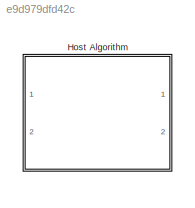
MODEL slx_e9d979dfd42c
KIND library
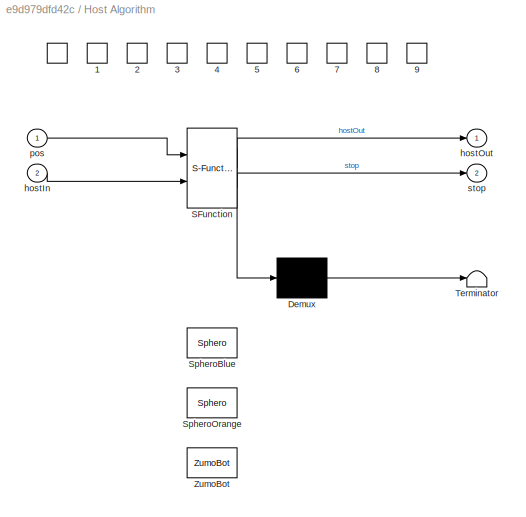
BLOCK [SubSystem] Host Algorithm
  ErrorFcn = Stateflow.Translate.translate
  PermitHierarchicalResolution = ExplicitOnly
  Ports = [2, 2]
  RequestExecContextInheritance = off
  SFBlockType = Chart
  TreatAsAtomicUnit = on
BLOCK [DataStoreMemory] Host Algorithm/ 
  DataStoreName = DoneBlue
  InitialValue = Stateflow.SLINSF.SimulinkMan.getDSMInitVal([1], 0, 'DoneBlue')
  OutDataTypeStr = boolean
  SignalType = real
BLOCK [DataStoreMemory] Host Algorithm/ 1
  DataStoreName = DoneOrange
  InitialValue = Stateflow.SLINSF.SimulinkMan.getDSMInitVal([1], 0, 'DoneOrange')
  OutDataTypeStr = boolean
  SignalType = real
BLOCK [DataStoreMemory] Host Algorithm/ 2
  DataStoreName = angleBlue
  InitialValue = Stateflow.SLINSF.SimulinkMan.getDSMInitVal([1], 0, 'angleBlue')
  OutDataTypeStr = double
  SignalType = real
BLOCK [DataStoreMemory] Host Algorithm/ 3
  DataStoreName = angleOrange
  InitialValue = Stateflow.SLINSF.SimulinkMan.getDSMInitVal([1], 0, 'angleOrange')
  OutDataTypeStr = double
  SignalType = real
BLOCK [DataStoreMemory] Host Algorithm/ 4
  DataStoreName = curPosBlue
  InitialValue = Stateflow.SLINSF.SimulinkMan.getDSMInitVal([2], 0, 'curPosBlue')
  OutDataTypeStr = double
  SignalType = real
BLOCK [DataStoreMemory] Host Algorithm/ 5
  DataStoreName = curPosOrange
  InitialValue = Stateflow.SLINSF.SimulinkMan.getDSMInitVal([2], 0, 'curPosOrange')
  OutDataTypeStr = double
  SignalType = real
BLOCK [DataStoreMemory] Host Algorithm/ 6
  DataStoreName = desPosBlue
  InitialValue = Stateflow.SLINSF.SimulinkMan.getDSMInitVal([2], 0, 'desPosBlue')
  OutDataTypeStr = double
  SignalType = real
BLOCK [DataStoreMemory] Host Algorithm/ 7
  DataStoreName = desPosOrange
  InitialValue = Stateflow.SLINSF.SimulinkMan.getDSMInitVal([2], 0, 'desPosOrange')
  OutDataTypeStr = double
  SignalType = real
BLOCK [DataStoreMemory] Host Algorithm/ 8
  DataStoreName = velocityBlue
  InitialValue = Stateflow.SLINSF.SimulinkMan.getDSMInitVal([1], 0, 'velocityBlue')
  OutDataTypeStr = double
  SignalType = real
BLOCK [DataStoreMemory] Host Algorithm/ 9
  DataStoreName = velocityOrange
  InitialValue = Stateflow.SLINSF.SimulinkMan.getDSMInitVal([1], 0, 'velocityOrange')
  OutDataTypeStr = double
  SignalType = real
BLOCK [Demux] Host Algorithm/ Demux 
  Outputs = 1
  Ports = [1, 1]
BLOCK [S-Function] Host Algorithm/ SFunction 
  EnableBusSupport = off
  FunctionName = sf_sfun
  Parameters = dThresh,posVectBlue,posVectOrange,tClose,tOpen,tSpheroStop,zumoInitCentroids
  PortCounts = [2 3]
  Ports = [2, 3]
  Tag = Stateflow S-Function hostLogic 2
BLOCK [Terminator] Host Algorithm/ Terminator 
BLOCK [Reference] Host Algorithm/SpheroBlue  REF=minionLogic/Sphero
  DSMNames = Done,angle,curPos,desPos,velocity
  DSMValues = DoneBlue,angleBlue,curPosBlue,desPosBlue,velocityBlue
  Ports = []
  SourceBlock = minionLogic/Sphero
  SourceType = SubSystem
BLOCK [Reference] Host Algorithm/SpheroOrange  REF=minionLogic/Sphero
  DSMNames = Done,angle,curPos,desPos,velocity
  DSMValues = DoneOrange,angleOrange,curPosOrange,desPosOrange,velocityOrange
  Ports = []
  SourceBlock = minionLogic/Sphero
BLOCK [Reference] Host Algorithm/ZumoBot  REF=minionLogic/ZumoBot
  Commented = on
  Ports = []
  SourceBlock = minionLogic/ZumoBot
  SourceType = SubSystem
BLOCK [Inport] Host Algorithm/hostIn
  IconDisplay = Port number
  Port = 2
BLOCK [Outport] Host Algorithm/hostOut
  IconDisplay = Port number
BLOCK [Inport] Host Algorithm/pos
  IconDisplay = Port number
BLOCK [Outport] Host Algorithm/stop
  IconDisplay = Port number
  Port = 2
CHART Host Algorithm states=20 transitions=15
  STATE_LABEL 'ZumoBot'
  STATE_LABEL 'SpheroBlue'
  STATE_LABEL 'SpheroOrange'
  STATE_LABEL "Top\nen:\nhostOut.Zumo1.motorSpeed = uint8(0);\nhostOut.Zumo1.TxEnable = 0;\nhostOut.Zumo2.motorSpeed = uint8(0);\nhostOut.Zumo2.TxEnable = 0;\nvelocityOrange = 0;\nangleOrange = 0;\nvelocityBlue = 0;\nangleBlue = 0;\nstop = 0;\nen,du,ex:\n% map all inputs to DSM's\ncurPosOrange = pos.SpheroOrange;\ncurPosBlue = pos.SpheroBlue;\n%\n% initialize des pos blue/orange for now\n%desPosOrange = [360 240]';\n%desPosBlue =...<+13ch>"
  STATE_LABEL 'tf = zumoClose(initPos,curPos,dTh)'
  STATE_LABEL '{tf = norm(curPos.Zumo1 - initPos(:,1)) <= dTh;}'
  STATE_LABEL 'Standby\n%Wait for NXT\n%to ascend\n%mountain'
  STATE_LABEL 'State1 % SpheroOrange to gate\nen:\ndesPosOrange = posVectOrange(:,1);\nSpheroOrange.TurnOn();\n'
  STATE_LABEL 'initBuses'
  STATE_LABEL 'State2 % Zumo open gate\nen:\nhostOut.Zumo1.motorSpeed = uint8(20);\nhostOut.Zumo1.TxEnable = 1;\nhostOut.Zumo2.motorSpeed = uint8(20);\nhostOut.Zumo2.TxEnable = 1;\nex:\nhostOut.Zumo1.motorSpeed = uint8(0);\nhostOut.Zumo2.motorSpeed = uint8(0);\n'
  STATE_LABEL 'Workspace (sldd) Parameters\nposVectOrange %initialized by CV\nposVectBlue %initialized by CV\nKp\nKd\nKi\nrestartspeed\nstopRadius\nstopspeed'
  STATE_LABEL 'State3 % SpheroOrange Move to point 2\nen:\ndesPosOrange = posVectOrange(:,2);\nSpheroOrange.TurnOn()'
  STATE_LABEL 'State4 % Zumo begin close gate\nen:\nhostOut.Zumo1.motorSpeed = uint8(20);\nhostOut.Zumo2.motorSpeed = uint8(20);\n'
  STATE_LABEL 'State5 % Zumo stop\nen:\nhostOut.Zumo1.motorSpeed = uint8(0);\nhostOut.Zumo2.motorSpeed = uint8(0);'
  STATE_LABEL 'State6 % SpheroBlue to gate\nen:\ndesPosBlue = posVectBlue(:,1);\nSpheroBlue.TurnOn();\n'
  STATE_LABEL 'State7 % Zumo open gate\nen:\nhostOut.Zumo1.motorSpeed = uint8(20);\nhostOut.Zumo1.TxEnable = 1;\nhostOut.Zumo2.motorSpeed = uint8(20);\nhostOut.Zumo2.TxEnable = 1;\nex:\nhostOut.Zumo1.motorSpeed = uint8(0);\nhostOut.Zumo2.motorSpeed = uint8(0);\n'
  STATE_LABEL 'State8 % SpheroBlue Move to point 2\nen:\ndesPosBlue = posVectBlue(:,2);\nSpheroBlue.TurnOn()'
  STATE_LABEL 'State9 % Zumo begin close gate\nen:\nhostOut.Zumo1.motorSpeed = uint8(20);\nhostOut.Zumo2.motorSpeed = uint8(20);\n'
  STATE_LABEL 'State10 % Zumo stop\nen:\nhostOut.Zumo1.motorSpeed = uint8(0);\nhostOut.Zumo2.motorSpeed = uint8(0);'
  STATE_LABEL 'State11 %Stop model\nen: stop = 1;'
  STATE_LABEL '[hostIn.NXT == 1]'
  STATE_LABEL '[after(tSpheroStop, sec) || DoneOrange] %condition when sphero is done moving?'
  STATE_LABEL 'after(tOpen,sec)'
  STATE_LABEL '[DoneOrange]'
  STATE_LABEL '[after(tSpheroStop, sec)]{SpheroOrange.TurnOff;} %condition when sphero is done moving?'
  STATE_LABEL '[zumoClose(zumoInitCentroids,pos,dThresh) || after(tClose,sec)]'
  STATE_LABEL '[DoneBlue]'
  STATE_LABEL '[after(tSpheroStop, sec)]{SpheroBlue.TurnOff;} %condition when sphero is done moving?'
  STATE_LABEL 'after(tOpen,sec)'
  STATE_LABEL '[after(tSpheroStop, sec) || DoneBlue] %condition when sphero is done moving?'
  STATE_LABEL '[zumoClose(zumoInitCentroids,pos,dThresh) || after(tClose,sec)]'
  STATE_LABEL 'tf = zumoClose(initPos,curPos,dTh)'
  STATE_LABEL '{tf = norm(curPos.Zumo1 - initPos(:,1)) <= dTh;}'
  STATE_LABEL 'Standby\n%Wait for NXT\n%to ascend\n%mountain'
  STATE_LABEL 'State1 % SpheroOrange to gate\nen:\ndesPosOrange = posVectOrange(:,1);\nSpheroOrange.TurnOn();\n'
  STATE_LABEL 'initBuses'
  STATE_LABEL 'State2 % Zumo open gate\nen:\nhostOut.Zumo1.motorSpeed = uint8(20);\nhostOut.Zumo1.TxEnable = 1;\nhostOut.Zumo2.motorSpeed = uint8(20);\nhostOut.Zumo2.TxEnable = 1;\nex:\nhostOut.Zumo1.motorSpeed = uint8(0);\nhostOut.Zumo2.motorSpeed = uint8(0);\n'
  STATE_LABEL 'Workspace (sldd) Parameters\nposVectOrange %initialized by CV\nposVectBlue %initialized by CV\nKp\nKd\nKi\nrestartspeed\nstopRadius\nstopspeed'
  STATE_LABEL 'State3 % SpheroOrange Move to point 2\nen:\ndesPosOrange = posVectOrange(:,2);\nSpheroOrange.TurnOn()'
  STATE_LABEL 'State4 % Zumo begin close gate\nen:\nhostOut.Zumo1.motorSpeed = uint8(20);\nhostOut.Zumo2.motorSpeed = uint8(20);\n'
